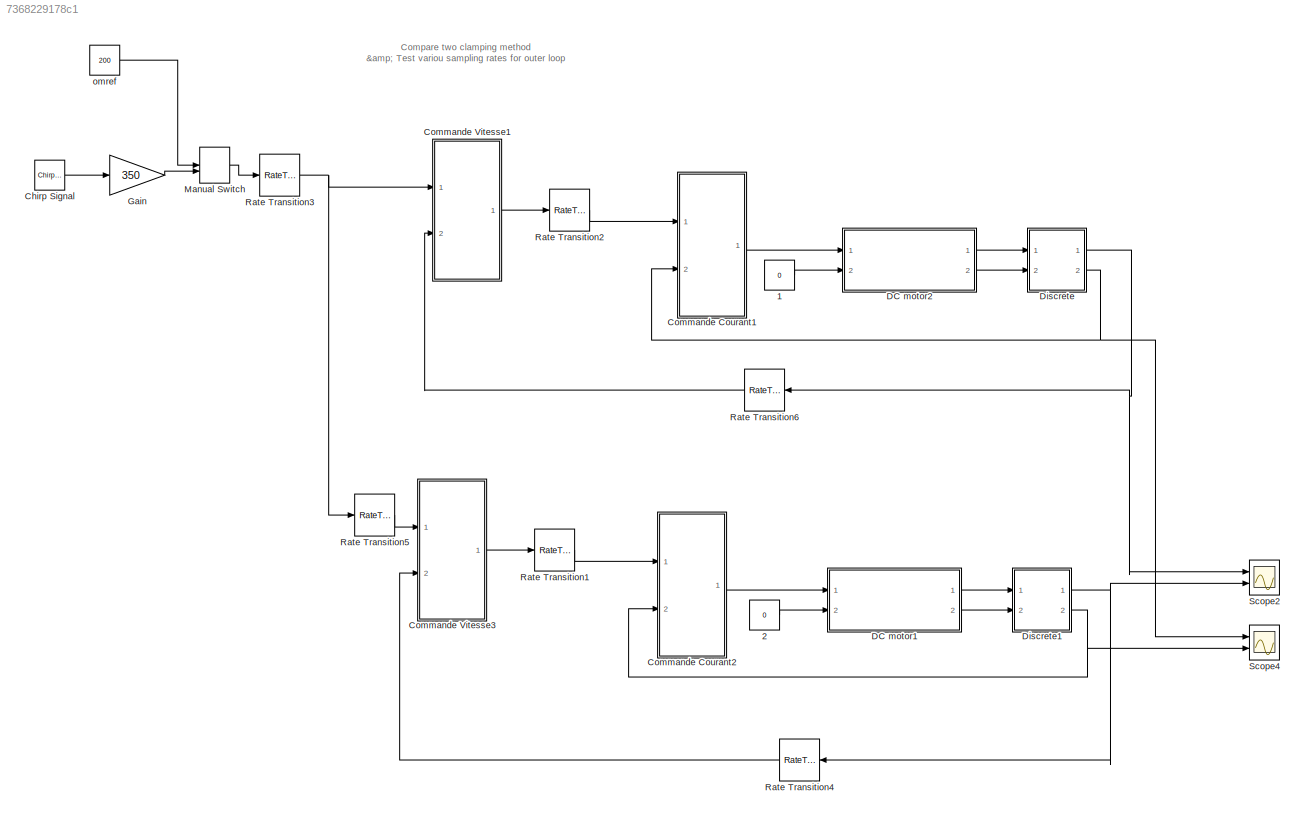
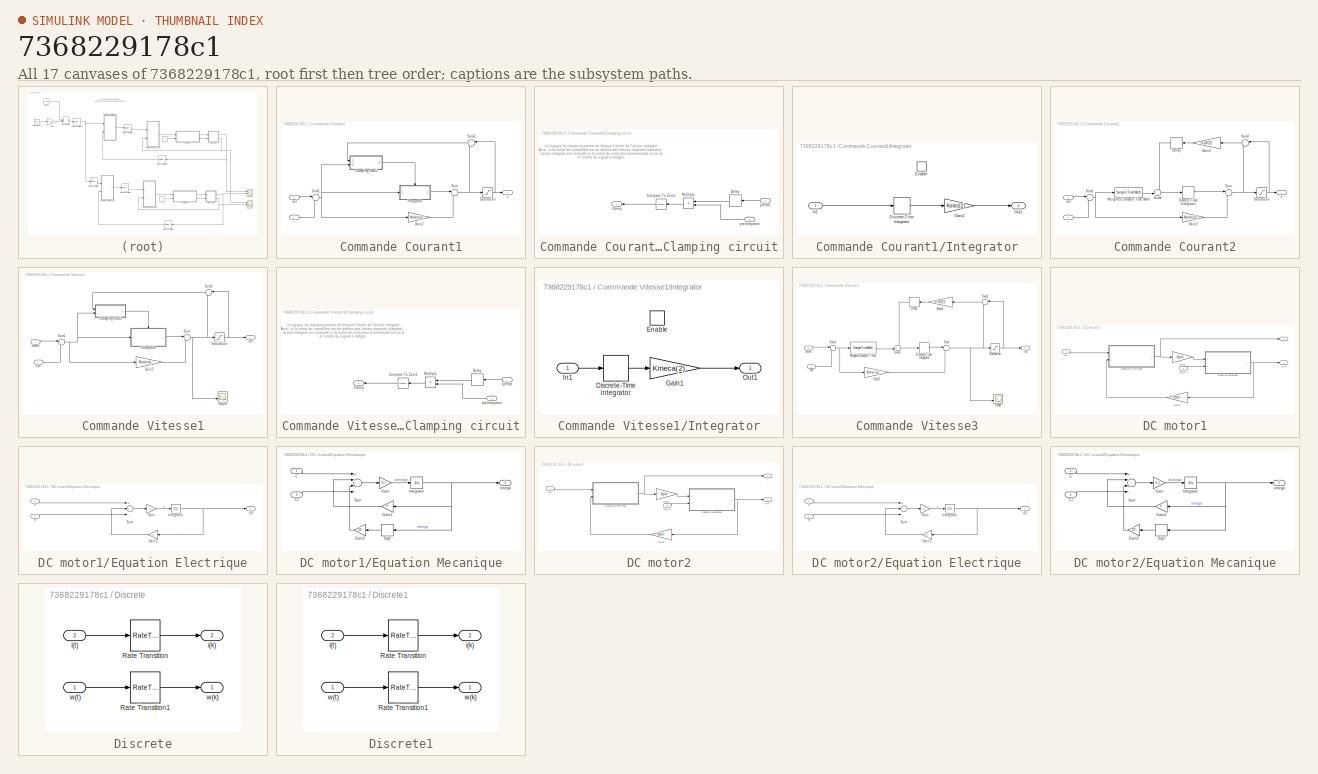
[diagram: thumbnail index - all 17 canvases of the model, root first then tree order]
MODEL slx_7368229178c1
KIND model
CONFIG AbsTol = auto
CONFIG EnableMultiTasking = off
CONFIG FixedStep = auto
CONFIG MaxStep = Ts_elec
CONFIG MinStep = auto
CONFIG RelTol = 1e-3
CONFIG SampleTimeConstraint = Unconstrained
CONFIG Solver = VariableStepAuto
CONFIG SolverName = VariableStepAuto
CONFIG StartTime = 0.0
CONFIG StopTime = 2
BLOCK [Constant]  2
  Value = 0
BLOCK [Constant] 1
  Value = 0
BLOCK [Reference] Chirp Signal  REF=simulink/Sources/Chirp Signal
  Ports = [0, 1]
  SourceBlock = simulink/Sources/Chirp Signal
  SourceProductBaseCode = SL
  SourceProductName = Simulink
  SourceType = chirp
BLOCK [SubSystem] Commande Courant1
  Ports = [2, 1]
  RequestExecContextInheritance = off
BLOCK [SubSystem] Commande Courant1/Clamping circuit
  Ports = [2, 1]
  RequestExecContextInheritance = off
BLOCK [Outport] Commande Courant1/Clamping circuit/Clamp
  DisableCoverage = on
  IconDisplay = Port number
BLOCK [Reference] Commande Courant1/Clamping circuit/Compare To Zero1  REF=simulink/Logic and Bit
Operations/Compare
To Zero
  Ports = [1, 1]
  SourceBlock = simulink/Logic and Bit\nOperations/Compare\nTo Zero
  SourceProductBaseCode = SL
  SourceProductName = Simulink
  SourceType = Compare To Zero
BLOCK [Delay] Commande Courant1/Clamping circuit/Delay
  DelayLength = 1
  InitialCondition = 0
  InputPortMap = u0
  Ports = [1, 1]
BLOCK [Product] Commande Courant1/Clamping circuit/Multiply
  InputSameDT = off
  OutDataTypeStr = Inherit: Inherit via internal rule
  Ports = [2, 1]
  RndMeth = Floor
  SaturateOnIntegerOverflow = off
BLOCK [Inport] Commande Courant1/Clamping circuit/preIntegrator
  DisableCoverage = on
  IconDisplay = Port number
  Port = 2
  VarSizeSig = No
BLOCK [Inport] Commande Courant1/Clamping circuit/preSat
  DisableCoverage = on
  IconDisplay = Port number
BLOCK [Gain] Commande Courant1/Gain2
  Gain = Kelec(1)
  OutDataTypeStr = Inherit: Inherit via internal rule
  ParamDataTypeStr = Inherit: Inherit via internal rule
  SaturateOnIntegerOverflow = off
BLOCK [SubSystem] Commande Courant1/Integrator
  Ports = [1, 1, 1]
  RequestExecContextInheritance = off
BLOCK [DiscreteIntegrator] Commande Courant1/Integrator/Discrete-Time Integrator
  ICPrevOutput = DiscIntNeverNeededParam
  ICPrevScaledInput = DiscIntNeverNeededParam
  InitialConditionSetting = Auto
  Ports = [1, 1]
  SampleTime = 50e-6
BLOCK [EnablePort] Commande Courant1/Integrator/Enable
  Ports = []
BLOCK [Gain] Commande Courant1/Integrator/Gain1
  Gain = Kelec(2)
  OutDataTypeStr = Inherit: Inherit via internal rule
  ParamDataTypeStr = Inherit: Inherit via internal rule
  SaturateOnIntegerOverflow = off
BLOCK [Inport] Commande Courant1/Integrator/In1
  IconDisplay = Port number
BLOCK [Outport] Commande Courant1/Integrator/Out1
  IconDisplay = Port number
BLOCK [Saturate] Commande Courant1/Saturation
  InputPortMap = u0
  LowerLimit = -Vmax
  Ports = [1, 1]
  UpperLimit = Vmax
BLOCK [Sum] Commande Courant1/Sum
  IconShape = round
  InputSameDT = off
  Inputs = |+-
  OutDataTypeStr = Inherit: Inherit via internal rule
  Ports = [2, 1]
  SaturateOnIntegerOverflow = off
BLOCK [Sum] Commande Courant1/Sum1
  IconShape = round
  InputSameDT = off
  Inputs = |+-
  OutDataTypeStr = Inherit: Inherit via internal rule
  Ports = [2, 1]
  SaturateOnIntegerOverflow = off
BLOCK [Sum] Commande Courant1/Sum2
  AccumDataTypeStr = Inherit: Same as first input
  IconShape = round
  InputSameDT = off
  Inputs = |-+
  OutDataTypeStr = Inherit: Same as accumulator
  Ports = [2, 1]
  SaturateOnIntegerOverflow = off
BLOCK [Inport] Commande Courant1/i
  IconDisplay = Port number
  Port = 2
BLOCK [Inport] Commande Courant1/iref
  IconDisplay = Port number
BLOCK [Outport] Commande Courant1/v
  IconDisplay = Port number
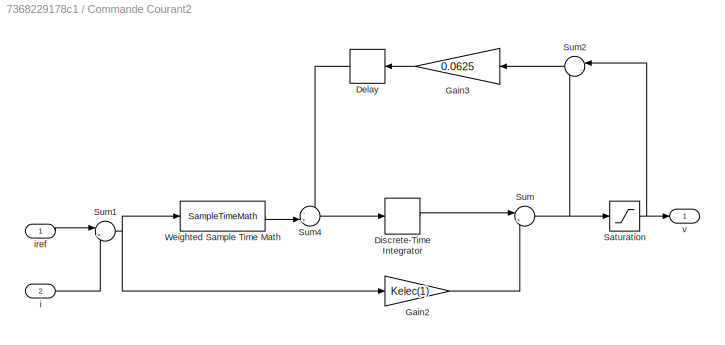
BLOCK [SubSystem] Commande Courant2
  Ports = [2, 1]
  RequestExecContextInheritance = off
BLOCK [Delay] Commande Courant2/Delay
  DelayLength = 1
  InitialCondition = 0
  InputPortMap = u0
  Ports = [1, 1]
BLOCK [DiscreteIntegrator] Commande Courant2/Discrete-Time Integrator
  ICPrevOutput = DiscIntNeverNeededParam
  ICPrevScaledInput = DiscIntNeverNeededParam
  InitialConditionSetting = Auto
  IntegratorMethod = Accumulation: Backward Euler
  Ports = [1, 1]
  SampleTime = -1
BLOCK [Gain] Commande Courant2/Gain2
  Gain = Kelec(1)
  OutDataTypeStr = Inherit: Inherit via internal rule
  ParamDataTypeStr = Inherit: Inherit via internal rule
  SaturateOnIntegerOverflow = off
BLOCK [Gain] Commande Courant2/Gain3
  Gain = 0.0625
  OutDataTypeStr = Inherit: Inherit via internal rule
  ParamDataTypeStr = Inherit: Inherit via internal rule
  SaturateOnIntegerOverflow = off
BLOCK [Saturate] Commande Courant2/Saturation
  InputPortMap = u0
  LowerLimit = -Vmax
  Ports = [1, 1]
  UpperLimit = Vmax
BLOCK [Sum] Commande Courant2/Sum
  IconShape = round
  InputSameDT = off
  Inputs = |+-
  OutDataTypeStr = Inherit: Inherit via internal rule
  Ports = [2, 1]
  SaturateOnIntegerOverflow = off
BLOCK [Sum] Commande Courant2/Sum1
  IconShape = round
  InputSameDT = off
  Inputs = |+-
  OutDataTypeStr = Inherit: Inherit via internal rule
  Ports = [2, 1]
  SaturateOnIntegerOverflow = off
BLOCK [Sum] Commande Courant2/Sum2
  AccumDataTypeStr = Inherit: Same as first input
  IconShape = round
  InputSameDT = off
  Inputs = |-+
  OutDataTypeStr = Inherit: Same as accumulator
  Ports = [2, 1]
  SaturateOnIntegerOverflow = off
BLOCK [Sum] Commande Courant2/Sum4
  IconShape = round
  InputSameDT = off
  Inputs = -+|
  OutDataTypeStr = Inherit: Inherit via internal rule
  Ports = [2, 1]
  SaturateOnIntegerOverflow = off
BLOCK [SampleTimeMath] Commande Courant2/Weighted Sample Time Math
  TsampMathImp = Offline Scaling Adjustment
  TsampMathOp = *
  weightValue = Kelec(2)
BLOCK [Inport] Commande Courant2/i
  IconDisplay = Port number
  Port = 2
BLOCK [Inport] Commande Courant2/iref
  IconDisplay = Port number
BLOCK [Outport] Commande Courant2/v
  IconDisplay = Port number
BLOCK [SubSystem] Commande Vitesse1
  Ports = [2, 1]
  RequestExecContextInheritance = off
BLOCK [SubSystem] Commande Vitesse1/Clamping circuit
  Ports = [2, 1]
  RequestExecContextInheritance = off
BLOCK [Outport] Commande Vitesse1/Clamping circuit/Clamp
  DisableCoverage = on
  IconDisplay = Port number
BLOCK [Reference] Commande Vitesse1/Clamping circuit/Compare To Zero1  REF=simulink/Logic and Bit
Operations/Compare
To Zero
  Ports = [1, 1]
  SourceBlock = simulink/Logic and Bit\nOperations/Compare\nTo Zero
  SourceProductBaseCode = SL
  SourceProductName = Simulink
  SourceType = Compare To Zero
BLOCK [Delay] Commande Vitesse1/Clamping circuit/Delay
  DelayLength = 1
  InitialCondition = 0
  InputPortMap = u0
  Ports = [1, 1]
BLOCK [Product] Commande Vitesse1/Clamping circuit/Multiply
  InputSameDT = off
  OutDataTypeStr = Inherit: Inherit via internal rule
  Ports = [2, 1]
  RndMeth = Floor
  SaturateOnIntegerOverflow = off
BLOCK [Inport] Commande Vitesse1/Clamping circuit/preIntegrator
  DisableCoverage = on
  IconDisplay = Port number
  Port = 2
  VarSizeSig = No
BLOCK [Inport] Commande Vitesse1/Clamping circuit/preSat
  DisableCoverage = on
  IconDisplay = Port number
BLOCK [Gain] Commande Vitesse1/Gain2
  Gain = -Kmeca(1)
  OutDataTypeStr = Inherit: Inherit via internal rule
  ParamDataTypeStr = Inherit: Inherit via internal rule
  SaturateOnIntegerOverflow = off
BLOCK [SubSystem] Commande Vitesse1/Integrator
  Ports = [1, 1, 1]
  RequestExecContextInheritance = off
BLOCK [DiscreteIntegrator] Commande Vitesse1/Integrator/Discrete-Time Integrator
  ICPrevOutput = DiscIntNeverNeededParam
  ICPrevScaledInput = DiscIntNeverNeededParam
  InitialConditionSetting = Auto
  Ports = [1, 1]
  SampleTime = -1
BLOCK [EnablePort] Commande Vitesse1/Integrator/Enable
  Ports = []
BLOCK [Gain] Commande Vitesse1/Integrator/Gain1
  Gain = Kmeca(2)
  OutDataTypeStr = Inherit: Inherit via internal rule
  ParamDataTypeStr = Inherit: Inherit via internal rule
  SaturateOnIntegerOverflow = off
BLOCK [Inport] Commande Vitesse1/Integrator/In1
  IconDisplay = Port number
BLOCK [Outport] Commande Vitesse1/Integrator/Out1
  IconDisplay = Port number
BLOCK [Saturate] Commande Vitesse1/Saturation
  InputPortMap = u0
  LowerLimit = -Imax
  Ports = [1, 1]
  UpperLimit = Imax
BLOCK [Scope] Commande Vitesse1/Scope
  Floating = off
  NumInputPorts = 2
  Ports = [2]
  ScopeSpecificationString = Simulink.scopes.TimeScopeBlockCfg('CurrentConfiguration', extmgr.ConfigurationSet(extmgr.Configuration('Core','General UI',true),extmgr.Configuration('Core','Source UI',true),extmgr.Configuration('Sources','WiredSimulink',true,'DataLoggingVariableName','ScopeData4'),extmgr.Configuration('Visuals','Time Domain',true,'SerializedDisplays',{struct('MinYLimReal','-1.10656','MaxYLimReal','9.95902','YLab...<+1414ch>
BLOCK [Sum] Commande Vitesse1/Sum
  IconShape = round
  InputSameDT = off
  Inputs = |--
  OutDataTypeStr = Inherit: Inherit via internal rule
  Ports = [2, 1]
  SaturateOnIntegerOverflow = off
BLOCK [Sum] Commande Vitesse1/Sum1
  IconShape = round
  InputSameDT = off
  Inputs = |+-
  OutDataTypeStr = Inherit: Inherit via internal rule
  Ports = [2, 1]
  SaturateOnIntegerOverflow = off
BLOCK [Sum] Commande Vitesse1/Sum2
  AccumDataTypeStr = Inherit: Same as first input
  IconShape = round
  InputSameDT = off
  Inputs = |-+
  OutDataTypeStr = Inherit: Same as accumulator
  Ports = [2, 1]
  SaturateOnIntegerOverflow = off
BLOCK [Outport] Commande Vitesse1/iref
  IconDisplay = Port number
BLOCK [Inport] Commande Vitesse1/om
  IconDisplay = Port number
  Port = 2
BLOCK [Inport] Commande Vitesse1/omref
  IconDisplay = Port number
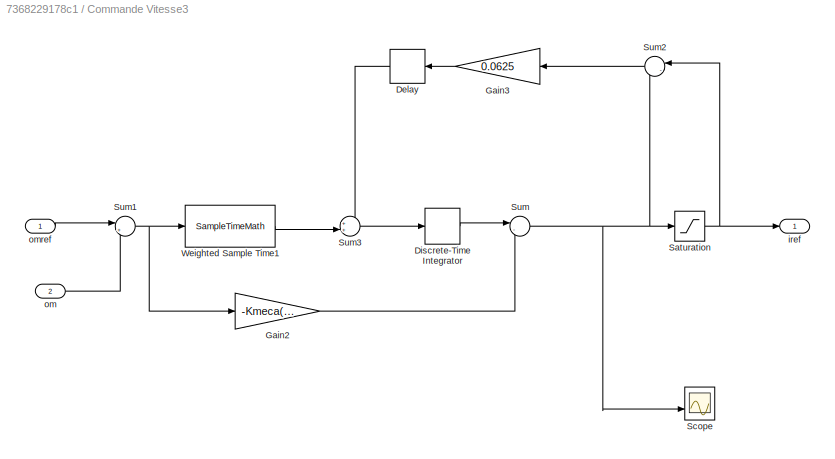
BLOCK [SubSystem] Commande Vitesse3
  Ports = [2, 1]
  RequestExecContextInheritance = off
BLOCK [Delay] Commande Vitesse3/Delay
  DelayLength = 1
  InitialCondition = 0
  InputPortMap = u0
  Ports = [1, 1]
BLOCK [DiscreteIntegrator] Commande Vitesse3/Discrete-Time Integrator
  ICPrevOutput = DiscIntNeverNeededParam
  ICPrevScaledInput = DiscIntNeverNeededParam
  InitialConditionSetting = Auto
  IntegratorMethod = Accumulation: Backward Euler
  Ports = [1, 1]
  SampleTime = -1
BLOCK [Gain] Commande Vitesse3/Gain2
  Gain = -Kmeca(1)
  OutDataTypeStr = Inherit: Inherit via internal rule
  ParamDataTypeStr = Inherit: Inherit via internal rule
  SaturateOnIntegerOverflow = off
BLOCK [Gain] Commande Vitesse3/Gain3
  Gain = 0.0625
  OutDataTypeStr = Inherit: Inherit via internal rule
  ParamDataTypeStr = Inherit: Inherit via internal rule
  SaturateOnIntegerOverflow = off
BLOCK [Saturate] Commande Vitesse3/Saturation
  InputPortMap = u0
  LowerLimit = -Imax
  Ports = [1, 1]
  UpperLimit = Imax
BLOCK [Scope] Commande Vitesse3/Scope
  Floating = off
  NumInputPorts = 2
  Ports = [2]
  ScopeSpecificationString = Simulink.scopes.TimeScopeBlockCfg('CurrentConfiguration', extmgr.ConfigurationSet(extmgr.Configuration('Core','General UI',true),extmgr.Configuration('Core','Source UI',true),extmgr.Configuration('Sources','WiredSimulink',true,'DataLoggingVariableName','ScopeData4'),extmgr.Configuration('Visuals','Time Domain',true,'SerializedDisplays',{struct('MinYLimReal','-1.10037','MaxYLimReal','9.90335','YLab...<+1432ch>
BLOCK [Sum] Commande Vitesse3/Sum
  IconShape = round
  InputSameDT = off
  Inputs = |--
  OutDataTypeStr = Inherit: Inherit via internal rule
  Ports = [2, 1]
  SaturateOnIntegerOverflow = off
BLOCK [Sum] Commande Vitesse3/Sum1
  IconShape = round
  InputSameDT = off
  Inputs = |+-
  OutDataTypeStr = Inherit: Inherit via internal rule
  Ports = [2, 1]
  SaturateOnIntegerOverflow = off
BLOCK [Sum] Commande Vitesse3/Sum2
  AccumDataTypeStr = Inherit: Same as first input
  IconShape = round
  InputSameDT = off
  Inputs = |-+
  OutDataTypeStr = Inherit: Same as accumulator
  Ports = [2, 1]
  SaturateOnIntegerOverflow = off
BLOCK [Sum] Commande Vitesse3/Sum3
  IconShape = round
  InputSameDT = off
  Inputs = ++|
  OutDataTypeStr = Inherit: Inherit via internal rule
  Ports = [2, 1]
  SaturateOnIntegerOverflow = off
BLOCK [SampleTimeMath] Commande Vitesse3/Weighted Sample Time1
  TsampMathOp = *
  weightValue = Kmeca(2)
BLOCK [Outport] Commande Vitesse3/iref
  IconDisplay = Port number
BLOCK [Inport] Commande Vitesse3/om
  IconDisplay = Port number
  Port = 2
BLOCK [Inport] Commande Vitesse3/omref
  IconDisplay = Port number
BLOCK [SubSystem] DC motor1
  Ports = [2, 2]
  RequestExecContextInheritance = off
BLOCK [SubSystem] DC motor1/Equation Electrique
  Ports = [2, 1]
  RequestExecContextInheritance = off
BLOCK [Gain] DC motor1/Equation Electrique/Gain
  Gain = 1/L
  OutDataTypeStr = Inherit: Inherit via internal rule
  ParamDataTypeStr = Inherit: Inherit via internal rule
  SaturateOnIntegerOverflow = off
BLOCK [Gain] DC motor1/Equation Electrique/Gain1
  Gain = R
  OutDataTypeStr = Inherit: Inherit via internal rule
  ParamDataTypeStr = Inherit: Inherit via internal rule
  SaturateOnIntegerOverflow = off
BLOCK [Integrator] DC motor1/Equation Electrique/Integrator
  Ports = [1, 1]
BLOCK [Sum] DC motor1/Equation Electrique/Sum
  InputSameDT = off
  Inputs = +--
  OutDataTypeStr = Inherit: Inherit via internal rule
  Ports = [3, 1]
  SaturateOnIntegerOverflow = off
BLOCK [Inport] DC motor1/Equation Electrique/e
  IconDisplay = Port number
  Port = 2
BLOCK [Outport] DC motor1/Equation Electrique/i(t)
  IconDisplay = Port number
BLOCK [Inport] DC motor1/Equation Electrique/v
  IconDisplay = Port number
BLOCK [SubSystem] DC motor1/Equation Mecanique
  Ports = [2, 1]
  RequestExecContextInheritance = off
BLOCK [Inport] DC motor1/Equation Mecanique/C
  IconDisplay = Port number
BLOCK [Inport] DC motor1/Equation Mecanique/Cl
  IconDisplay = Port number
  Port = 2
BLOCK [Gain] DC motor1/Equation Mecanique/Gain
  Gain = 1/J
  OutDataTypeStr = Inherit: Inherit via internal rule
  ParamDataTypeStr = Inherit: Inherit via internal rule
  SaturateOnIntegerOverflow = off
BLOCK [Gain] DC motor1/Equation Mecanique/Gain1
  Gain = F
  OutDataTypeStr = Inherit: Inherit via internal rule
  ParamDataTypeStr = Inherit: Inherit via internal rule
  SaturateOnIntegerOverflow = off
BLOCK [Gain] DC motor1/Equation Mecanique/Gain2
  Gain = C0
  OutDataTypeStr = Inherit: Inherit via internal rule
  ParamDataTypeStr = Inherit: Inherit via internal rule
  SaturateOnIntegerOverflow = off
BLOCK [Integrator] DC motor1/Equation Mecanique/Integrator
  Ports = [1, 1]
BLOCK [Signum] DC motor1/Equation Mecanique/Sign
BLOCK [Sum] DC motor1/Equation Mecanique/Sum
  InputSameDT = off
  Inputs = +-+-
  OutDataTypeStr = Inherit: Inherit via internal rule
  Ports = [4, 1]
  SaturateOnIntegerOverflow = off
BLOCK [Outport] DC motor1/Equation Mecanique/omega
  IconDisplay = Port number
BLOCK [Gain] DC motor1/Gain1
  Gain = Kphi
  OutDataTypeStr = Inherit: Inherit via internal rule
  ParamDataTypeStr = Inherit: Inherit via internal rule
  SaturateOnIntegerOverflow = off
BLOCK [Gain] DC motor1/Gain3  
  Gain = Kphi
  OutDataTypeStr = Inherit: Inherit via internal rule
  ParamDataTypeStr = Inherit: Inherit via internal rule
  SaturateOnIntegerOverflow = off
BLOCK [Outport] DC motor1/i
  IconDisplay = Port number
  Port = 2
BLOCK [Inport] DC motor1/tau_l(t)
  IconDisplay = Port number
  Port = 2
BLOCK [Inport] DC motor1/v(t)
  IconDisplay = Port number
BLOCK [Outport] DC motor1/w(t)
  IconDisplay = Port number
BLOCK [SubSystem] DC motor2
  Ports = [2, 2]
  RequestExecContextInheritance = off
BLOCK [SubSystem] DC motor2/Equation Electrique
  Ports = [2, 1]
  RequestExecContextInheritance = off
BLOCK [Gain] DC motor2/Equation Electrique/Gain
  Gain = 1/L
  OutDataTypeStr = Inherit: Inherit via internal rule
  ParamDataTypeStr = Inherit: Inherit via internal rule
  SaturateOnIntegerOverflow = off
BLOCK [Gain] DC motor2/Equation Electrique/Gain1
  Gain = R
  OutDataTypeStr = Inherit: Inherit via internal rule
  ParamDataTypeStr = Inherit: Inherit via internal rule
  SaturateOnIntegerOverflow = off
BLOCK [Integrator] DC motor2/Equation Electrique/Integrator
  Ports = [1, 1]
BLOCK [Sum] DC motor2/Equation Electrique/Sum
  InputSameDT = off
  Inputs = +--
  OutDataTypeStr = Inherit: Inherit via internal rule
  Ports = [3, 1]
  SaturateOnIntegerOverflow = off
BLOCK [Inport] DC motor2/Equation Electrique/e
  IconDisplay = Port number
  Port = 2
BLOCK [Outport] DC motor2/Equation Electrique/i(t)
  IconDisplay = Port number
BLOCK [Inport] DC motor2/Equation Electrique/v
  IconDisplay = Port number
BLOCK [SubSystem] DC motor2/Equation Mecanique
  Ports = [2, 1]
  RequestExecContextInheritance = off
BLOCK [Inport] DC motor2/Equation Mecanique/C
  IconDisplay = Port number
BLOCK [Inport] DC motor2/Equation Mecanique/Cl
  IconDisplay = Port number
  Port = 2
BLOCK [Gain] DC motor2/Equation Mecanique/Gain
  Gain = 1/J
  OutDataTypeStr = Inherit: Inherit via internal rule
  ParamDataTypeStr = Inherit: Inherit via internal rule
  SaturateOnIntegerOverflow = off
BLOCK [Gain] DC motor2/Equation Mecanique/Gain1
  Gain = F
  OutDataTypeStr = Inherit: Inherit via internal rule
  ParamDataTypeStr = Inherit: Inherit via internal rule
  SaturateOnIntegerOverflow = off
BLOCK [Gain] DC motor2/Equation Mecanique/Gain2
  Gain = C0
  OutDataTypeStr = Inherit: Inherit via internal rule
  ParamDataTypeStr = Inherit: Inherit via internal rule
  SaturateOnIntegerOverflow = off
BLOCK [Integrator] DC motor2/Equation Mecanique/Integrator
  Ports = [1, 1]
BLOCK [Signum] DC motor2/Equation Mecanique/Sign
BLOCK [Sum] DC motor2/Equation Mecanique/Sum
  InputSameDT = off
  Inputs = +-+-
  OutDataTypeStr = Inherit: Inherit via internal rule
  Ports = [4, 1]
  SaturateOnIntegerOverflow = off
BLOCK [Outport] DC motor2/Equation Mecanique/omega
  IconDisplay = Port number
BLOCK [Gain] DC motor2/Gain1
  Gain = Kphi
  OutDataTypeStr = Inherit: Inherit via internal rule
  ParamDataTypeStr = Inherit: Inherit via internal rule
  SaturateOnIntegerOverflow = off
BLOCK [Gain] DC motor2/Gain3  
  Gain = Kphi
  OutDataTypeStr = Inherit: Inherit via internal rule
  ParamDataTypeStr = Inherit: Inherit via internal rule
  SaturateOnIntegerOverflow = off
BLOCK [Outport] DC motor2/i
  IconDisplay = Port number
  Port = 2
BLOCK [Inport] DC motor2/tau_l(t)
  IconDisplay = Port number
  Port = 2
BLOCK [Inport] DC motor2/v(t)
  IconDisplay = Port number
BLOCK [Outport] DC motor2/w(t)
  IconDisplay = Port number
BLOCK [SubSystem] Discrete
  Ports = [2, 2]
  RequestExecContextInheritance = off
BLOCK [RateTransition] Discrete/Rate Transition
  Deterministic = off
  OutPortSampleTime = 50e-6
BLOCK [RateTransition] Discrete/Rate Transition1
  Deterministic = off
  OutPortSampleTime = .002
BLOCK [Outport] Discrete/i(k)
  IconDisplay = Port number
  Port = 2
BLOCK [Inport] Discrete/i(t)
  IconDisplay = Port number
  Port = 2
BLOCK [Outport] Discrete/w(k)
  IconDisplay = Port number
BLOCK [Inport] Discrete/w(t)
  IconDisplay = Port number
BLOCK [SubSystem] Discrete1
  Ports = [2, 2]
  RequestExecContextInheritance = off
BLOCK [RateTransition] Discrete1/Rate Transition
  Deterministic = off
  OutPortSampleTime = 50e-6
BLOCK [RateTransition] Discrete1/Rate Transition1
  Deterministic = off
  OutPortSampleTime = .002
BLOCK [Outport] Discrete1/i(k)
  IconDisplay = Port number
  Port = 2
BLOCK [Inport] Discrete1/i(t)
  IconDisplay = Port number
  Port = 2
BLOCK [Outport] Discrete1/w(k)
  IconDisplay = Port number
BLOCK [Inport] Discrete1/w(t)
  IconDisplay = Port number
BLOCK [Gain] Gain
  Gain = 350
  OutDataTypeStr = Inherit: Inherit via back propagation
  ParamDataTypeStr = Inherit: Inherit via internal rule
  SaturateOnIntegerOverflow = off
BLOCK [ManualSwitch] Manual Switch
BLOCK [RateTransition] Rate Transition1
  Deterministic = off
  OutPortSampleTime = 50e-6
BLOCK [RateTransition] Rate Transition2
  Deterministic = off
  OutPortSampleTime = 50e-6
BLOCK [RateTransition] Rate Transition3
  Deterministic = off
  OutPortSampleTime = .002
BLOCK [RateTransition] Rate Transition4
  Deterministic = off
  OutPortSampleTime = 0.002
BLOCK [RateTransition] Rate Transition5
  Deterministic = off
BLOCK [RateTransition] Rate Transition6
  Deterministic = off
  OutPortSampleTime = 0.002
BLOCK [Scope] Scope2
  Floating = off
  NumInputPorts = 2
  Ports = [2]
  ScopeSpecificationString = Simulink.scopes.TimeScopeBlockCfg('CurrentConfiguration', extmgr.ConfigurationSet(extmgr.Configuration('Core','General UI',true),extmgr.Configuration('Core','Source UI',true),extmgr.Configuration('Sources','WiredSimulink',true,'DataLoggingVariableName','ScopeData1'),extmgr.Configuration('Visuals','Time Domain',true,'SerializedDisplays',{struct('MinYLimReal','-41.82087','MaxYLimReal','376.38783','Y...<+1528ch>
BLOCK [Scope] Scope4
  Floating = off
  NumInputPorts = 2
  Ports = [2]
  ScopeSpecificationString = Simulink.scopes.TimeScopeBlockCfg('CurrentConfiguration', extmgr.ConfigurationSet(extmgr.Configuration('Core','General UI',true),extmgr.Configuration('Core','Source UI',true),extmgr.Configuration('Sources','WiredSimulink',true,'DataLoggingVariableName','ScopeData2'),extmgr.Configuration('Visuals','Time Domain',true,'SerializedDisplays',{struct('MinYLimReal','-27.33514','MaxYLimReal','246.01629','Y...<+1528ch>
BLOCK [Constant] omref
  OutDataTypeStr = Inherit: Inherit via back propagation
  Value = 200
ANNOTATION (root): Compare two clamping method & Test variou sampling rates for outer loop
ANNOTATION Commande Courant1/Clamping circuit: La logique de clamping permet de bloquer l'entée de l'action intégrale. Ainsi, si la sortie du controlleur est en dehors des limites imposés (saturée), alors l'action intégrale du correcteur est verrouyé (clamping). L'action intégrale est verroullé si la sortie du correcteur (commande) est en dehors des saturations et que le signe de cette sortie est égale à l'entrée du signal à intégrer.
ANNOTATION Commande Vitesse1/Clamping circuit: La logique de clamping permet de bloquer l'entée de l'action intégrale. Ainsi, si la sortie du controlleur est en dehors des limites imposés (saturée), alors l'action intégrale du correcteur est verrouyé (clamping). L'action intégrale est verroullé si la sortie du correcteur (commande) est en dehors des saturations et que le signe de cette sortie est égale à l'entrée du signal à intégrer.
LINE  2:1 -> DC motor1:2
LINE 1:1 -> DC motor2:2
LINE Chirp Signal:1 -> Gain:1
LINE Commande Courant1/Clamping circuit/Compare To Zero1:1 -> Commande Courant1/Clamping circuit/Clamp:1
LINE Commande Courant1/Clamping circuit/Delay:1 -> Commande Courant1/Clamping circuit/Multiply:1
LINE Commande Courant1/Clamping circuit/Multiply:1 -> Commande Courant1/Clamping circuit/Compare To Zero1:1
LINE Commande Courant1/Clamping circuit/preIntegrator:1 -> Commande Courant1/Clamping circuit/Multiply:2
LINE Commande Courant1/Clamping circuit/preSat:1 -> Commande Courant1/Clamping circuit/Delay:1
LINE Commande Courant1/Clamping circuit:1 -> Commande Courant1/Integrator:enable
LINE Commande Courant1/Gain2:1 -> Commande Courant1/Sum:2
LINE Commande Courant1/Integrator/Discrete-Time Integrator:1 -> Commande Courant1/Integrator/Gain1:1
LINE Commande Courant1/Integrator/Gain1:1 -> Commande Courant1/Integrator/Out1:1
LINE Commande Courant1/Integrator/In1:1 -> Commande Courant1/Integrator/Discrete-Time Integrator:1
LINE Commande Courant1/Integrator:1 -> Commande Courant1/Sum:1
NET Commande Courant1/Saturation:1 -> Commande Courant1/Sum2:1, Commande Courant1/v:1
NET Commande Courant1/Sum1:1 -> Commande Courant1/Clamping circuit:2, Commande Courant1/Gain2:1, Commande Courant1/Integrator:1
LINE Commande Courant1/Sum2:1 -> Commande Courant1/Clamping circuit:1
NET Commande Courant1/Sum:1 -> Commande Courant1/Saturation:1, Commande Courant1/Sum2:2
LINE Commande Courant1/i:1 -> Commande Courant1/Sum1:2
LINE Commande Courant1/iref:1 -> Commande Courant1/Sum1:1
LINE Commande Courant1:1 -> DC motor2:1
LINE Commande Courant2/Delay:1 -> Commande Courant2/Sum4:1
LINE Commande Courant2/Discrete-Time Integrator:1 -> Commande Courant2/Sum:1
LINE Commande Courant2/Gain2:1 -> Commande Courant2/Sum:2
LINE Commande Courant2/Gain3:1 -> Commande Courant2/Delay:1
NET Commande Courant2/Saturation:1 -> Commande Courant2/Sum2:1, Commande Courant2/v:1
NET Commande Courant2/Sum1:1 -> Commande Courant2/Gain2:1, Commande Courant2/Weighted Sample Time Math:1
LINE Commande Courant2/Sum2:1 -> Commande Courant2/Gain3:1
LINE Commande Courant2/Sum4:1 -> Commande Courant2/Discrete-Time Integrator:1
NET Commande Courant2/Sum:1 -> Commande Courant2/Saturation:1, Commande Courant2/Sum2:2
LINE Commande Courant2/Weighted Sample Time Math:1 -> Commande Courant2/Sum4:2
LINE Commande Courant2/i:1 -> Commande Courant2/Sum1:2
LINE Commande Courant2/iref:1 -> Commande Courant2/Sum1:1
LINE Commande Courant2:1 -> DC motor1:1
LINE Commande Vitesse1/Clamping circuit/Compare To Zero1:1 -> Commande Vitesse1/Clamping circuit/Clamp:1
LINE Commande Vitesse1/Clamping circuit/Delay:1 -> Commande Vitesse1/Clamping circuit/Multiply:1
LINE Commande Vitesse1/Clamping circuit/Multiply:1 -> Commande Vitesse1/Clamping circuit/Compare To Zero1:1
LINE Commande Vitesse1/Clamping circuit/preIntegrator:1 -> Commande Vitesse1/Clamping circuit/Multiply:2
LINE Commande Vitesse1/Clamping circuit/preSat:1 -> Commande Vitesse1/Clamping circuit/Delay:1
LINE Commande Vitesse1/Clamping circuit:1 -> Commande Vitesse1/Integrator:enable
LINE Commande Vitesse1/Gain2:1 -> Commande Vitesse1/Sum:2
LINE Commande Vitesse1/Integrator/Discrete-Time Integrator:1 -> Commande Vitesse1/Integrator/Gain1:1
LINE Commande Vitesse1/Integrator/Gain1:1 -> Commande Vitesse1/Integrator/Out1:1
LINE Commande Vitesse1/Integrator/In1:1 -> Commande Vitesse1/Integrator/Discrete-Time Integrator:1
LINE Commande Vitesse1/Integrator:1 -> Commande Vitesse1/Sum:1
NET Commande Vitesse1/Saturation:1 -> Commande Vitesse1/Sum2:1, Commande Vitesse1/iref:1
NET Commande Vitesse1/Sum1:1 -> Commande Vitesse1/Clamping circuit:2, Commande Vitesse1/Gain2:1, Commande Vitesse1/Integrator:1
LINE Commande Vitesse1/Sum2:1 -> Commande Vitesse1/Clamping circuit:1
NET Commande Vitesse1/Sum:1 -> Commande Vitesse1/Saturation:1, Commande Vitesse1/Scope:2, Commande Vitesse1/Sum2:2
LINE Commande Vitesse1/om:1 -> Commande Vitesse1/Sum1:2
LINE Commande Vitesse1/omref:1 -> Commande Vitesse1/Sum1:1
LINE Commande Vitesse1:1 -> Rate Transition2:1
LINE Commande Vitesse3/Delay:1 -> Commande Vitesse3/Sum3:1
LINE Commande Vitesse3/Discrete-Time Integrator:1 -> Commande Vitesse3/Sum:1
LINE Commande Vitesse3/Gain2:1 -> Commande Vitesse3/Sum:2
LINE Commande Vitesse3/Gain3:1 -> Commande Vitesse3/Delay:1
NET Commande Vitesse3/Saturation:1 -> Commande Vitesse3/Sum2:1, Commande Vitesse3/iref:1
NET Commande Vitesse3/Sum1:1 -> Commande Vitesse3/Gain2:1, Commande Vitesse3/Weighted Sample Time1:1
LINE Commande Vitesse3/Sum2:1 -> Commande Vitesse3/Gain3:1
LINE Commande Vitesse3/Sum3:1 -> Commande Vitesse3/Discrete-Time Integrator:1
NET Commande Vitesse3/Sum:1 -> Commande Vitesse3/Saturation:1, Commande Vitesse3/Scope:2, Commande Vitesse3/Sum2:2
LINE Commande Vitesse3/Weighted Sample Time1:1 -> Commande Vitesse3/Sum3:2
LINE Commande Vitesse3/om:1 -> Commande Vitesse3/Sum1:2
LINE Commande Vitesse3/omref:1 -> Commande Vitesse3/Sum1:1
LINE Commande Vitesse3:1 -> Rate Transition1:1
LINE DC motor1/Equation Electrique/Gain1:1 -> DC motor1/Equation Electrique/Sum:2
LINE DC motor1/Equation Electrique/Gain:1 -> DC motor1/Equation Electrique/Integrator:1
NET DC motor1/Equation Electrique/Integrator:1 -> DC motor1/Equation Electrique/Gain1:1, DC motor1/Equation Electrique/i(t):1
LINE DC motor1/Equation Electrique/Sum:1 -> DC motor1/Equation Electrique/Gain:1
LINE DC motor1/Equation Electrique/e:1 -> DC motor1/Equation Electrique/Sum:3
LINE DC motor1/Equation Electrique/v:1 -> DC motor1/Equation Electrique/Sum:1
NET DC motor1/Equation Electrique:1 -> DC motor1/Gain1:1, DC motor1/i:1
LINE DC motor1/Equation Mecanique/C:1 -> DC motor1/Equation Mecanique/Sum:1
LINE DC motor1/Equation Mecanique/Cl:1 -> DC motor1/Equation Mecanique/Sum:4
LINE DC motor1/Equation Mecanique/Gain1:1 -> DC motor1/Equation Mecanique/Sum:2
LINE DC motor1/Equation Mecanique/Gain2:1 -> DC motor1/Equation Mecanique/Sum:3
LINE DC motor1/Equation Mecanique/Gain:1 -> DC motor1/Equation Mecanique/Integrator:1
NET DC motor1/Equation Mecanique/Integrator:1 -> DC motor1/Equation Mecanique/Gain1:1, DC motor1/Equation Mecanique/Sign:1, DC motor1/Equation Mecanique/omega:1
LINE DC motor1/Equation Mecanique/Sign:1 -> DC motor1/Equation Mecanique/Gain2:1
LINE DC motor1/Equation Mecanique/Sum:1 -> DC motor1/Equation Mecanique/Gain:1
NET DC motor1/Equation Mecanique:1 -> DC motor1/Gain3  :1, DC motor1/w(t):1
LINE DC motor1/Gain1:1 -> DC motor1/Equation Mecanique:1
LINE DC motor1/Gain3  :1 -> DC motor1/Equation Electrique:2
LINE DC motor1/tau_l(t):1 -> DC motor1/Equation Mecanique:2
LINE DC motor1/v(t):1 -> DC motor1/Equation Electrique:1
LINE DC motor1:1 -> Discrete1:1
LINE DC motor1:2 -> Discrete1:2
LINE DC motor2/Equation Electrique/Gain1:1 -> DC motor2/Equation Electrique/Sum:2
LINE DC motor2/Equation Electrique/Gain:1 -> DC motor2/Equation Electrique/Integrator:1
NET DC motor2/Equation Electrique/Integrator:1 -> DC motor2/Equation Electrique/Gain1:1, DC motor2/Equation Electrique/i(t):1
LINE DC motor2/Equation Electrique/Sum:1 -> DC motor2/Equation Electrique/Gain:1
LINE DC motor2/Equation Electrique/e:1 -> DC motor2/Equation Electrique/Sum:3
LINE DC motor2/Equation Electrique/v:1 -> DC motor2/Equation Electrique/Sum:1
NET DC motor2/Equation Electrique:1 -> DC motor2/Gain1:1, DC motor2/i:1
LINE DC motor2/Equation Mecanique/C:1 -> DC motor2/Equation Mecanique/Sum:1
LINE DC motor2/Equation Mecanique/Cl:1 -> DC motor2/Equation Mecanique/Sum:4
LINE DC motor2/Equation Mecanique/Gain1:1 -> DC motor2/Equation Mecanique/Sum:2
LINE DC motor2/Equation Mecanique/Gain2:1 -> DC motor2/Equation Mecanique/Sum:3
LINE DC motor2/Equation Mecanique/Gain:1 -> DC motor2/Equation Mecanique/Integrator:1
NET DC motor2/Equation Mecanique/Integrator:1 -> DC motor2/Equation Mecanique/Gain1:1, DC motor2/Equation Mecanique/Sign:1, DC motor2/Equation Mecanique/omega:1
LINE DC motor2/Equation Mecanique/Sign:1 -> DC motor2/Equation Mecanique/Gain2:1
LINE DC motor2/Equation Mecanique/Sum:1 -> DC motor2/Equation Mecanique/Gain:1
NET DC motor2/Equation Mecanique:1 -> DC motor2/Gain3  :1, DC motor2/w(t):1
LINE DC motor2/Gain1:1 -> DC motor2/Equation Mecanique:1
LINE DC motor2/Gain3  :1 -> DC motor2/Equation Electrique:2
LINE DC motor2/tau_l(t):1 -> DC motor2/Equation Mecanique:2
LINE DC motor2/v(t):1 -> DC motor2/Equation Electrique:1
LINE DC motor2:1 -> Discrete:1
LINE DC motor2:2 -> Discrete:2
LINE Discrete/Rate Transition1:1 -> Discrete/w(k):1
LINE Discrete/Rate Transition:1 -> Discrete/i(k):1
LINE Discrete/i(t):1 -> Discrete/Rate Transition:1
LINE Discrete/w(t):1 -> Discrete/Rate Transition1:1
LINE Discrete1/Rate Transition1:1 -> Discrete1/w(k):1
LINE Discrete1/Rate Transition:1 -> Discrete1/i(k):1
LINE Discrete1/i(t):1 -> Discrete1/Rate Transition:1
LINE Discrete1/w(t):1 -> Discrete1/Rate Transition1:1
NET Discrete1:1 -> Rate Transition4:1, Scope2:2
NET Discrete1:2 -> Commande Courant2:2, Scope4:2
NET Discrete:1 -> Rate Transition6:1, Scope2:1
NET Discrete:2 -> Commande Courant1:2, Scope4:1
LINE Gain:1 -> Manual Switch:2
LINE Manual Switch:1 -> Rate Transition3:1
LINE Rate Transition1:1 -> Commande Courant2:1
LINE Rate Transition2:1 -> Commande Courant1:1
NET Rate Transition3:1 -> Commande Vitesse1:1, Rate Transition5:1
LINE Rate Transition4:1 -> Commande Vitesse3:2
LINE Rate Transition5:1 -> Commande Vitesse3:1
LINE Rate Transition6:1 -> Commande Vitesse1:2
LINE omref:1 -> Manual Switch:1
note: NET lines group one-source signal fan-out (src -> all destinations, sorted); 1:1 wires keep LINE
